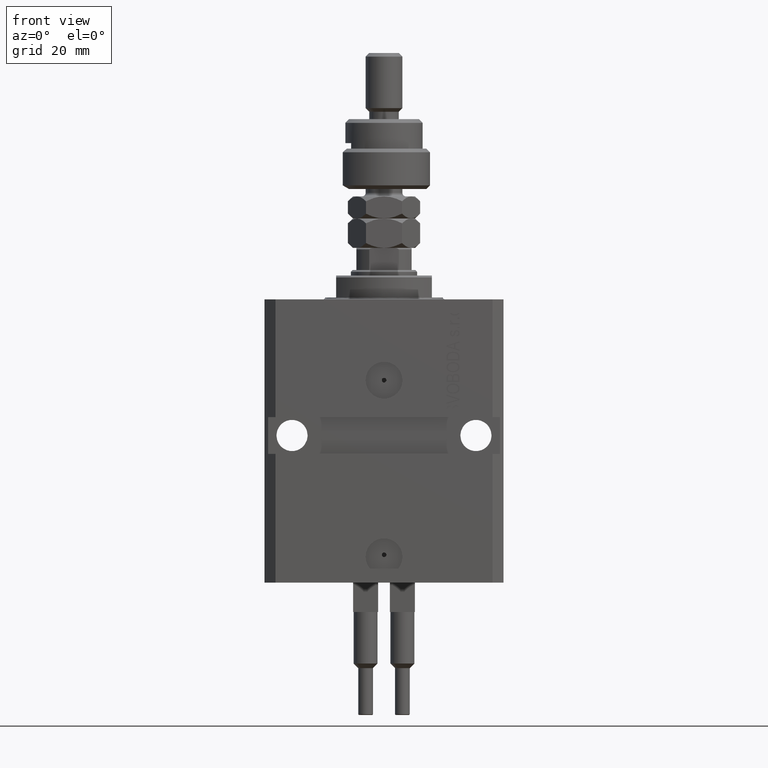
[diagram: clean part render]
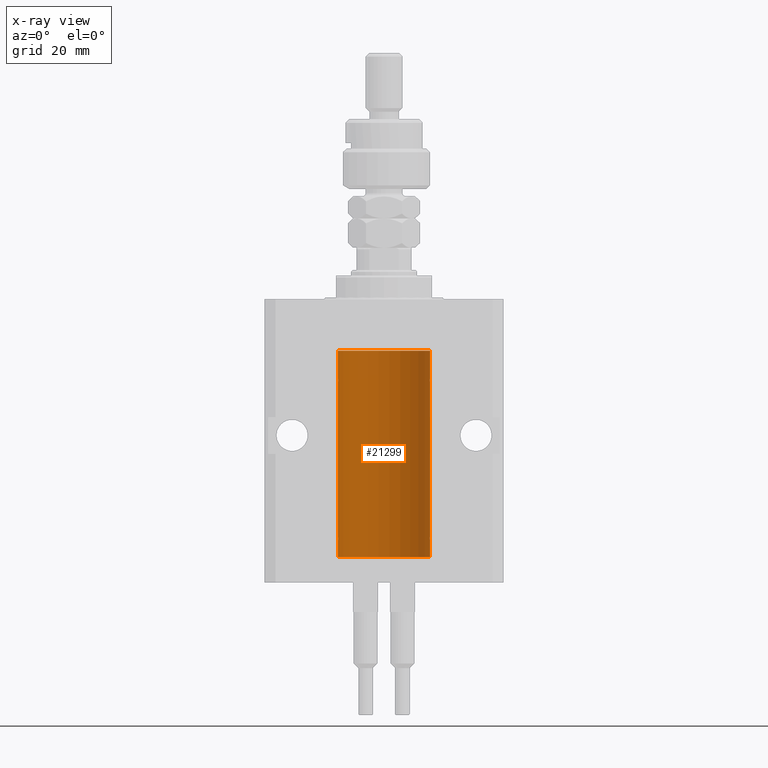
[diagram: x-ray — body ghosted, one internal face saturated and labeled with its STEP entity id]
A machine part, front view, then the same camera in x-ray: the body is ghosted and one INTERNAL B-rep face — a face not visible from any outside direction — is saturated and labeled: STEP entity #21299.
In plain terms, the highlighted cylindrical surface (partial cylindrical patch) has radius 12.5 mm, axis along (0, 0, 1).
Its self-contained STEP definition (entity closure, byte-faithful):
#81 = VERTEX_POINT ( 'NONE', #16684 ) ;
#724 = LINE ( 'NONE', #25629, #23276 ) ;
#844 = CIRCLE ( 'NONE', #44002, 12.50000000000000000 ) ;
#947 = ORIENTED_EDGE ( 'NONE', *, *, #35654, .F. ) ;
#970 = CARTESIAN_POINT ( 'NONE',  ( -12.48436813453758809, 0.6249418250771181516, -64.83668996798922990 ) ) ;
#979 = CARTESIAN_POINT ( 'NONE',  ( 12.49012055744648997, 0.5002956126655978553, -21.61641710202404454 ) ) ;
#980 = VERTEX_POINT ( 'NONE', #37982 ) ;
#1419 = CARTESIAN_POINT ( 'NONE',  ( 12.48436522214846711, 0.6250000000078848039, -64.99999999999923261 ) ) ;
#1755 = VERTEX_POINT ( 'NONE', #50966 ) ;
#2213 = CARTESIAN_POINT ( 'NONE',  ( -12.50000000000017941, 3.883381646606358354E-13, -22.62500000000358824 ) ) ;
#2983 = CARTESIAN_POINT ( 'NONE',  ( 0.000000000000000000, 0.000000000000000000, -70.09999999999999432 ) ) ;
#3021 = ORIENTED_EDGE ( 'NONE', *, *, #5664, .F. ) ;
#3490 = CARTESIAN_POINT ( 'NONE',  ( 12.49625698805481200, 0.3151108292486943241, -22.54593695688172161 ) ) ;
#3655 = EDGE_CURVE ( 'NONE', #8597, #39077, #28338, .T. ) ;
#4409 = CARTESIAN_POINT ( 'NONE',  ( 12.48436522214885969, 0.6250000000001505462, -65.16312747540307271 ) ) ;
#4587 = CARTESIAN_POINT ( 'NONE',  ( -12.50000000000000000, 1.530808498934191521E-15, -13.99999999999999822 ) ) ;
#5307 = CARTESIAN_POINT ( 'NONE',  ( 12.48520578595314845, 0.6087855079133740466, -64.83656717509344958 ) ) ;
#5370 = CARTESIAN_POINT ( 'NONE',  ( -12.48809959379011580, 0.5462151254764966435, -65.31461370481613926 ) ) ;
#5412 = CARTESIAN_POINT ( 'NONE',  ( 12.49421963472024721, 0.3844519291903572555, -65.49947303647046226 ) ) ;
#5664 = EDGE_CURVE ( 'NONE', #43928, #47147, #17437, .T. ) ;
#5670 = DIRECTION ( 'NONE',  ( 1.000000000000000000, 0.000000000000000000, 0.000000000000000000 ) ) ;
#5723 = CIRCLE ( 'NONE', #34759, 12.50000000000000000 ) ;
#6190 = EDGE_CURVE ( 'NONE', #24566, #6659, #27758, .T. ) ;
#6231 = EDGE_CURVE ( 'NONE', #39077, #48646, #36667, .T. ) ;
#6358 = VECTOR ( 'NONE', #8632, 1000.000000000000000 ) ;
#6659 = VERTEX_POINT ( 'NONE', #4587 ) ;
#7893 = ORIENTED_EDGE ( 'NONE', *, *, #47841, .T. ) ;
#8122 = LINE ( 'NONE', #40074, #6358 ) ;
#8512 = CARTESIAN_POINT ( 'NONE',  ( -12.48810268015257741, 0.5573155909661293705, -64.67347410093867666 ) ) ;
#8597 = VERTEX_POINT ( 'NONE', #10855 ) ;
#8632 = DIRECTION ( 'NONE',  ( -0.000000000000000000, -0.000000000000000000, 1.000000000000000000 ) ) ;
#8654 = B_SPLINE_CURVE_WITH_KNOTS ( 'NONE', 3,
 ( #32412, #8766, #24620, #40459, #979, #19700, #31389, #35550 ),
 .UNSPECIFIED., .F., .F.,
 ( 4, 2, 2, 4 ),
 ( 0.0009773924225142526390, 0.001221629287363798890, 0.001465866152213344924, 0.001954339881912444798 ),
 .UNSPECIFIED. ) ;
#8766 = CARTESIAN_POINT ( 'NONE',  ( 12.48436522214888100, 0.6249999999996767031, -21.91847339462351130 ) ) ;
#8811 = AXIS2_PLACEMENT_3D ( 'NONE', #41510, #13214, #5670 ) ;
#8934 = ORIENTED_EDGE ( 'NONE', *, *, #3655, .T. ) ;
#9814 = CYLINDRICAL_SURFACE ( 'NONE', #8811, 12.50000000000000000 ) ;
#10000 = CARTESIAN_POINT ( 'NONE',  ( 12.48436522214846889, 0.6250000000078781426, -21.99999999999923261 ) ) ;
#10426 = CARTESIAN_POINT ( 'NONE',  ( 12.48436522214846711, 0.6250000000078848039, -64.99999999999923261 ) ) ;
#10762 = ORIENTED_EDGE ( 'NONE', *, *, #34866, .T. ) ;
#10855 = CARTESIAN_POINT ( 'NONE',  ( 12.50000000000000000, -1.836039810331332019E-15, -65.62500000000000000 ) ) ;
#11704 = VECTOR ( 'NONE', #35538, 1000.000000000000000 ) ;
#11801 = CARTESIAN_POINT ( 'NONE',  ( 12.48436522214885080, 0.6250000000001435518, -22.16312747540306560 ) ) ;
#12389 = CARTESIAN_POINT ( 'NONE',  ( -12.48810268015257563, 0.5573155909661349217, -21.67347410093867666 ) ) ;
#12420 = CARTESIAN_POINT ( 'NONE',  ( -12.49631005746706514, 0.3253680783018499389, -65.55856740465391397 ) ) ;
#12576 = ORIENTED_EDGE ( 'NONE', *, *, #34958, .T. ) ;
#12606 = LINE ( 'NONE', #16490, #14880 ) ;
#13214 = DIRECTION ( 'NONE',  ( -0.000000000000000000, -0.000000000000000000, 1.000000000000000000 ) ) ;
#13683 = DIRECTION ( 'NONE',  ( 0.000000000000000000, 0.000000000000000000, 1.000000000000000000 ) ) ;
#13902 = CARTESIAN_POINT ( 'NONE',  ( -12.49631005746706336, 0.3253680783018528255, -22.55856740465392463 ) ) ;
#13931 = DIRECTION ( 'NONE',  ( 1.000000000000000000, 0.000000000000000000, 0.000000000000000000 ) ) ;
#14152 = CARTESIAN_POINT ( 'NONE',  ( -12.50000000000017941, 3.883381646606358354E-13, -22.62500000000358824 ) ) ;
#14205 = VERTEX_POINT ( 'NONE', #14152 ) ;
#14337 = ORIENTED_EDGE ( 'NONE', *, *, #16742, .T. ) ;
#14880 = VECTOR ( 'NONE', #24791, 1000.000000000000000 ) ;
#15325 = CARTESIAN_POINT ( 'NONE',  ( 12.50000000000000000, -1.836039810331332019E-15, -65.62500000000000000 ) ) ;
#15374 = ORIENTED_EDGE ( 'NONE', *, *, #29906, .F. ) ;
#15541 = CARTESIAN_POINT ( 'NONE',  ( 12.48810305280568222, 0.5461368461738485003, -64.68525466142676805 ) ) ;
#16277 = CARTESIAN_POINT ( 'NONE',  ( -12.48436376893640443, 0.6250290278979917513, -22.08132082824473486 ) ) ;
#16490 = CARTESIAN_POINT ( 'NONE',  ( 12.50000000000000000, 0.000000000000000000, -70.09999999999999432 ) ) ;
#16684 = CARTESIAN_POINT ( 'NONE',  ( 12.50000000000000000, -6.043189914290669986E-17, -22.62500000000000000 ) ) ;
#16742 = EDGE_CURVE ( 'NONE', #81, #31565, #37722, .T. ) ;
#16779 = CARTESIAN_POINT ( 'NONE',  ( -12.48809959379011403, 0.5462151254764975317, -22.31461370481611795 ) ) ;
#16808 = CARTESIAN_POINT ( 'NONE',  ( -12.49422197749724361, 0.3843754434364307082, -64.50047099568097053 ) ) ;
#17437 = LINE ( 'NONE', #37941, #19966 ) ;
#18297 = CARTESIAN_POINT ( 'NONE',  ( -12.49999999999999289, 0.1631761135151241215, -22.62499999999984013 ) ) ;
#18327 = CARTESIAN_POINT ( 'NONE',  ( 0.000000000000000000, 0.000000000000000000, -13.99999999999999822 ) ) ;
#19057 = CARTESIAN_POINT ( 'NONE',  ( 12.50000000000000178, 0.08262306818362646910, -22.62499999999997158 ) ) ;
#19700 = CARTESIAN_POINT ( 'NONE',  ( 12.49631206032075958, 0.3252904079142805438, -21.44139700214925526 ) ) ;
#19966 = VECTOR ( 'NONE', #33280, 1000.000000000000000 ) ;
#20172 = CARTESIAN_POINT ( 'NONE',  ( -12.49915784441386890, 0.1636601911727947889, -21.39126818989430490 ) ) ;
#20454 = DIRECTION ( 'NONE',  ( -0.000000000000000000, -0.000000000000000000, 1.000000000000000000 ) ) ;
#20697 = CARTESIAN_POINT ( 'NONE',  ( -12.48520330846398174, 0.6088355886774118320, -65.16325431852561678 ) ) ;
#21299 = ADVANCED_FACE ( 'NONE', ( #49044 ), #9814, .F. ) ;
#21941 = EDGE_CURVE ( 'NONE', #46097, #980, #8122, .T. ) ;
#22191 = ORIENTED_EDGE ( 'NONE', *, *, #6231, .T. ) ;
#22966 = CARTESIAN_POINT ( 'NONE',  ( 12.49421963472024721, 0.3844519291903548686, -22.49947303647045871 ) ) ;
#23276 = VECTOR ( 'NONE', #20454, 1000.000000000000000 ) ;
#23857 = CARTESIAN_POINT ( 'NONE',  ( 12.49631206032076136, 0.3252904079142934779, -64.44139700214927302 ) ) ;
#24153 = CARTESIAN_POINT ( 'NONE',  ( 12.48436522214846711, 0.6250000000078848039, -64.99999999999923261 ) ) ;
#24385 = ORIENTED_EDGE ( 'NONE', *, *, #38874, .T. ) ;
#24566 = VERTEX_POINT ( 'NONE', #46772 ) ;
#24620 = CARTESIAN_POINT ( 'NONE',  ( 12.48520578595314845, 0.6087855079133686065, -21.83656717509346024 ) ) ;
#24791 = DIRECTION ( 'NONE',  ( -0.000000000000000000, -0.000000000000000000, 1.000000000000000000 ) ) ;
#24938 = ORIENTED_EDGE ( 'NONE', *, *, #21941, .T. ) ;
#25629 = CARTESIAN_POINT ( 'NONE',  ( -12.50000000000000000, 1.530808498934191521E-15, -70.09999999999999432 ) ) ;
#26602 = CARTESIAN_POINT ( 'NONE',  ( 12.49915742890631876, 0.1636982395582408101, -22.60872397847025894 ) ) ;
#27758 = LINE ( 'NONE', #47737, #11704 ) ;
#27803 = DIRECTION ( 'NONE',  ( -0.000000000000000000, -0.000000000000000000, 1.000000000000000000 ) ) ;
#28236 = CARTESIAN_POINT ( 'NONE',  ( -12.48520330846397819, 0.6088355886774127201, -22.16325431852561323 ) ) ;
#28266 = CARTESIAN_POINT ( 'NONE',  ( -12.49999999999999822, 0.1631761135151225950, -65.62499999999985789 ) ) ;
#28338 = B_SPLINE_CURVE_WITH_KNOTS ( 'NONE', 3,
 ( #15325, #43110, #35326, #31421, #5412, #48529, #4409, #24153 ),
 .UNSPECIFIED., .F., .F.,
 ( 4, 2, 2, 4 ),
 ( 1.784246692340212412E-18, 0.0002443481056285665750, 0.0004886962112571313068, 0.0009773924225142606621 ),
 .UNSPECIFIED. ) ;
#28754 = CARTESIAN_POINT ( 'NONE',  ( -12.48436376893640265, 0.6250290278979918623, -65.08132082824472775 ) ) ;
#29097 = CARTESIAN_POINT ( 'NONE',  ( -12.50000000000000000, 1.530808498934191521E-15, -70.09999999999999432 ) ) ;
#29906 = EDGE_CURVE ( 'NONE', #50934, #43928, #5723, .T. ) ;
#31389 = CARTESIAN_POINT ( 'NONE',  ( 12.49999999999999112, 0.1631389616600886772, -21.37500000000019185 ) ) ;
#31421 = CARTESIAN_POINT ( 'NONE',  ( 12.49625698805481022, 0.3151108292486944906, -65.54593695688173227 ) ) ;
#31565 = VERTEX_POINT ( 'NONE', #10000 ) ;
#32048 = EDGE_LOOP ( 'NONE', ( #3021, #15374, #7893, #8934, #22191, #47834, #14337, #24385, #24938, #12576, #38992, #48886, #947, #10762 ) ) ;
#32121 = CARTESIAN_POINT ( 'NONE',  ( -12.49422197749724006, 0.3843754434364375916, -21.50047099568095277 ) ) ;
#32404 = CARTESIAN_POINT ( 'NONE',  ( -12.50000000000000000, -1.053276923642966949E-14, -64.37500000000000000 ) ) ;
#32412 = CARTESIAN_POINT ( 'NONE',  ( 12.48436522214846889, 0.6250000000078781426, -21.99999999999923261 ) ) ;
#33280 = DIRECTION ( 'NONE',  ( -0.000000000000000000, -0.000000000000000000, 1.000000000000000000 ) ) ;
#33545 = EDGE_CURVE ( 'NONE', #48646, #81, #12606, .T. ) ;
#33713 = B_SPLINE_CURVE_WITH_KNOTS ( 'NONE', 3,
 ( #32404, #41209, #40958, #36552, #16808, #8512, #970, #28754, #20697, #5370, #44355, #12420, #28266, #44847 ),
 .UNSPECIFIED., .F., .F.,
 ( 4, 2, 2, 2, 2, 2, 4 ),
 ( 3.492495172846855184E-18, 0.0002442924852390798859, 0.0004885849704781563023, 0.0009771699409563386254, 0.001221462426195450658, 0.001465754911434562473, 0.001954339881912786538 ),
 .UNSPECIFIED. ) ;
#34368 = VECTOR ( 'NONE', #27803, 1000.000000000000000 ) ;
#34663 = DIRECTION ( 'NONE',  ( 0.000000000000000000, 0.000000000000000000, 1.000000000000000000 ) ) ;
#34759 = AXIS2_PLACEMENT_3D ( 'NONE', #2983, #34663, #50498 ) ;
#34866 = EDGE_CURVE ( 'NONE', #1755, #47147, #33713, .T. ) ;
#34904 = CARTESIAN_POINT ( 'NONE',  ( 12.50000000000000000, -6.043189914290669986E-17, -22.62500000000000000 ) ) ;
#34958 = EDGE_CURVE ( 'NONE', #980, #6659, #844, .T. ) ;
#35282 = CARTESIAN_POINT ( 'NONE',  ( 12.49012055744648997, 0.5002956126656082914, -64.61641710202404454 ) ) ;
#35326 = CARTESIAN_POINT ( 'NONE',  ( 12.49915742890631876, 0.1636982395582385896, -65.60872397847025184 ) ) ;
#35538 = DIRECTION ( 'NONE',  ( -0.000000000000000000, -0.000000000000000000, 1.000000000000000000 ) ) ;
#35550 = CARTESIAN_POINT ( 'NONE',  ( 12.50000000000017941, 3.868073565084946818E-13, -21.37499999999641176 ) ) ;
#35654 = EDGE_CURVE ( 'NONE', #1755, #14205, #724, .T. ) ;
#35843 = CARTESIAN_POINT ( 'NONE',  ( 12.50000000000000000, 0.000000000000000000, -70.09999999999999432 ) ) ;
#36028 = CARTESIAN_POINT ( 'NONE',  ( -12.48436813453758454, 0.6249418250771192618, -21.83668996798922635 ) ) ;
#36057 = CARTESIAN_POINT ( 'NONE',  ( 12.49999999999999822, 0.1631389616600901760, -64.37500000000022737 ) ) ;
#36552 = CARTESIAN_POINT ( 'NONE',  ( -12.49625855304193500, 0.3150454781038046770, -64.45402800297485157 ) ) ;
#36667 = B_SPLINE_CURVE_WITH_KNOTS ( 'NONE', 3,
 ( #1419, #39436, #5307, #15541, #35282, #23857, #36057, #43586 ),
 .UNSPECIFIED., .F., .F.,
 ( 4, 2, 2, 4 ),
 ( 0.0009773924225142606621, 0.001221629287363811033, 0.001465866152213361404, 0.001954339881912461711 ),
 .UNSPECIFIED. ) ;
#37722 = B_SPLINE_CURVE_WITH_KNOTS ( 'NONE', 3,
 ( #34904, #19057, #26602, #3490, #22966, #50742, #11801, #43218 ),
 .UNSPECIFIED., .F., .F.,
 ( 4, 2, 2, 4 ),
 ( 5.872716678082737689E-20, 0.0002443481056285632140, 0.0004886962112571263195, 0.0009773924225142526390 ),
 .UNSPECIFIED. ) ;
#37941 = CARTESIAN_POINT ( 'NONE',  ( -12.50000000000000000, 1.530808498934191521E-15, -70.09999999999999432 ) ) ;
#37982 = CARTESIAN_POINT ( 'NONE',  ( 12.50000000000000000, 0.000000000000000000, -13.99999999999999822 ) ) ;
#38874 = EDGE_CURVE ( 'NONE', #31565, #46097, #8654, .T. ) ;
#38992 = ORIENTED_EDGE ( 'NONE', *, *, #6190, .F. ) ;
#39077 = VERTEX_POINT ( 'NONE', #10426 ) ;
#39436 = CARTESIAN_POINT ( 'NONE',  ( 12.48436522214888100, 0.6249999999996834754, -64.91847339462351840 ) ) ;
#39664 = CARTESIAN_POINT ( 'NONE',  ( -12.50000000000000000, -2.089494013101375120E-17, -21.37499999999999645 ) ) ;
#39924 = CARTESIAN_POINT ( 'NONE',  ( -12.50000000000000000, 0.08260426088729219685, -21.37500000000000000 ) ) ;
#40074 = CARTESIAN_POINT ( 'NONE',  ( 12.50000000000000000, 0.000000000000000000, -70.09999999999999432 ) ) ;
#40177 = CARTESIAN_POINT ( 'NONE',  ( -12.49011732893843529, 0.5003763274120274218, -22.38348111289287701 ) ) ;
#40459 = CARTESIAN_POINT ( 'NONE',  ( 12.48810305280568222, 0.5461368461738450586, -21.68525466142676805 ) ) ;
#40958 = CARTESIAN_POINT ( 'NONE',  ( -12.49915784441386890, 0.1636601911727943726, -64.39126818989430490 ) ) ;
#41209 = CARTESIAN_POINT ( 'NONE',  ( -12.49999999999999645, 0.08260426088728485550, -64.37499999999998579 ) ) ;
#41510 = CARTESIAN_POINT ( 'NONE',  ( 0.000000000000000000, 0.000000000000000000, -70.09999999999999432 ) ) ;
#43110 = CARTESIAN_POINT ( 'NONE',  ( 12.49999999999999822, 0.08262306818362624705, -65.62500000000000000 ) ) ;
#43218 = CARTESIAN_POINT ( 'NONE',  ( 12.48436522214846889, 0.6250000000078781426, -21.99999999999923261 ) ) ;
#43586 = CARTESIAN_POINT ( 'NONE',  ( 12.50000000000017941, 3.868073689162038701E-13, -64.37499999999640465 ) ) ;
#43799 = CARTESIAN_POINT ( 'NONE',  ( 12.50000000000017941, 3.868073565084946818E-13, -21.37499999999641176 ) ) ;
#43928 = VERTEX_POINT ( 'NONE', #29097 ) ;
#44002 = AXIS2_PLACEMENT_3D ( 'NONE', #18327, #13683, #13931 ) ;
#44071 = CARTESIAN_POINT ( 'NONE',  ( -12.49625855304193678, 0.3150454781038042329, -21.45402800297484802 ) ) ;
#44141 = LINE ( 'NONE', #35843, #34368 ) ;
#44355 = CARTESIAN_POINT ( 'NONE',  ( -12.49011732893843885, 0.5003763274120245352, -65.38348111289289477 ) ) ;
#44465 = EDGE_CURVE ( 'NONE', #24566, #14205, #49154, .T. ) ;
#44599 = CARTESIAN_POINT ( 'NONE',  ( 12.50000000000000000, 0.000000000000000000, -70.09999999999999432 ) ) ;
#44847 = CARTESIAN_POINT ( 'NONE',  ( -12.50000000000017941, 3.883381774819353300E-13, -65.62500000000359535 ) ) ;
#46097 = VERTEX_POINT ( 'NONE', #43799 ) ;
#46772 = CARTESIAN_POINT ( 'NONE',  ( -12.50000000000000000, -2.089494013101375120E-17, -21.37499999999999645 ) ) ;
#47147 = VERTEX_POINT ( 'NONE', #47650 ) ;
#47332 = CARTESIAN_POINT ( 'NONE',  ( 12.50000000000017941, 3.868073689162038701E-13, -64.37499999999640465 ) ) ;
#47650 = CARTESIAN_POINT ( 'NONE',  ( -12.50000000000017941, 3.883381774819353300E-13, -65.62500000000359535 ) ) ;
#47737 = CARTESIAN_POINT ( 'NONE',  ( -12.50000000000000000, 1.530808498934191521E-15, -70.09999999999999432 ) ) ;
#47834 = ORIENTED_EDGE ( 'NONE', *, *, #33545, .T. ) ;
#47841 = EDGE_CURVE ( 'NONE', #50934, #8597, #44141, .T. ) ;
#48529 = CARTESIAN_POINT ( 'NONE',  ( 12.48809900631782099, 0.5573988467445673001, -65.32640147935475738 ) ) ;
#48646 = VERTEX_POINT ( 'NONE', #47332 ) ;
#48886 = ORIENTED_EDGE ( 'NONE', *, *, #44465, .T. ) ;
#49044 = FACE_OUTER_BOUND ( 'NONE', #32048, .T. ) ;
#49154 = B_SPLINE_CURVE_WITH_KNOTS ( 'NONE', 3,
 ( #39664, #39924, #20172, #44071, #32121, #12389, #36028, #16277, #28236, #16779, #40177, #13902, #18297, #2213 ),
 .UNSPECIFIED., .F., .F.,
 ( 4, 2, 2, 2, 2, 2, 4 ),
 ( 2.030551168097110502E-20, 0.0002442924852390969078, 0.0004885849704781938157, 0.0009771699409563880650, 0.001221462426195485135, 0.001465754911434582423, 0.001954339881912776130 ),
 .UNSPECIFIED. ) ;
#50498 = DIRECTION ( 'NONE',  ( 1.000000000000000000, 0.000000000000000000, 0.000000000000000000 ) ) ;
#50742 = CARTESIAN_POINT ( 'NONE',  ( 12.48809900631782099, 0.5573988467445616379, -22.32640147935473962 ) ) ;
#50934 = VERTEX_POINT ( 'NONE', #44599 ) ;
#50966 = CARTESIAN_POINT ( 'NONE',  ( -12.50000000000000000, -1.053276923642966949E-14, -64.37500000000000000 ) ) ;